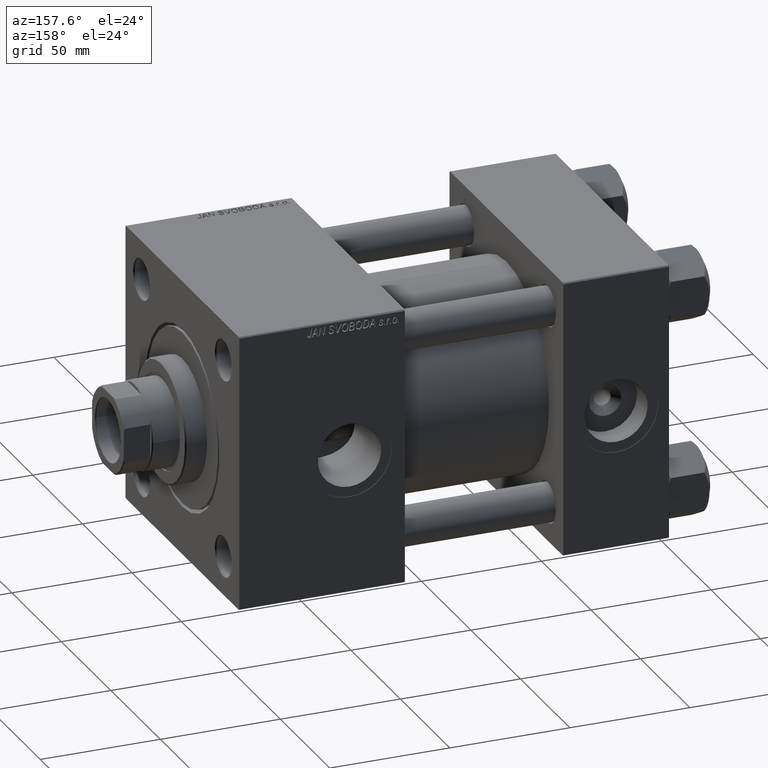
[diagram: clean part render]
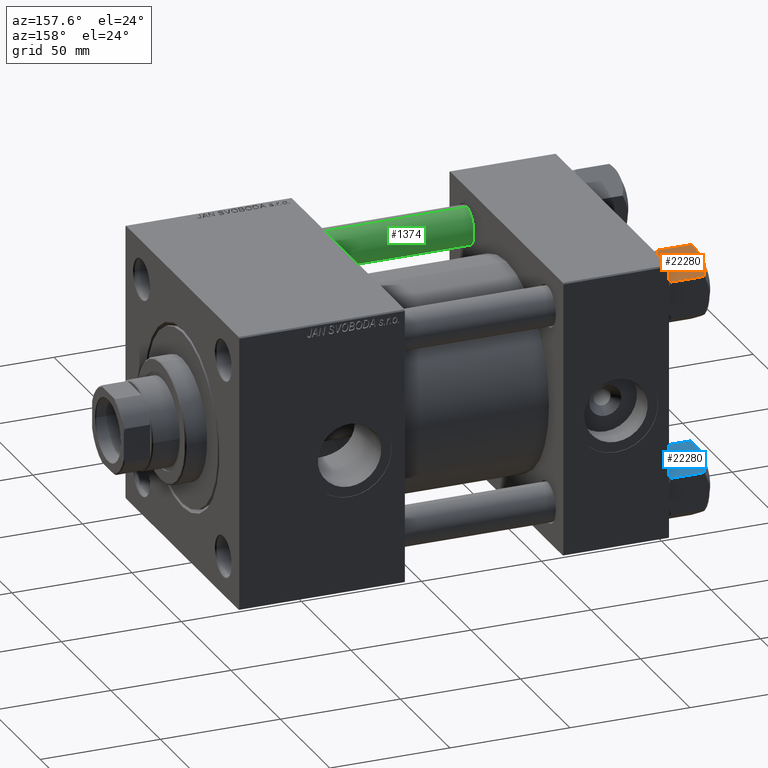
[diagram: same view with three faces highlighted in distinct colors, each labeled with its STEP entity id]
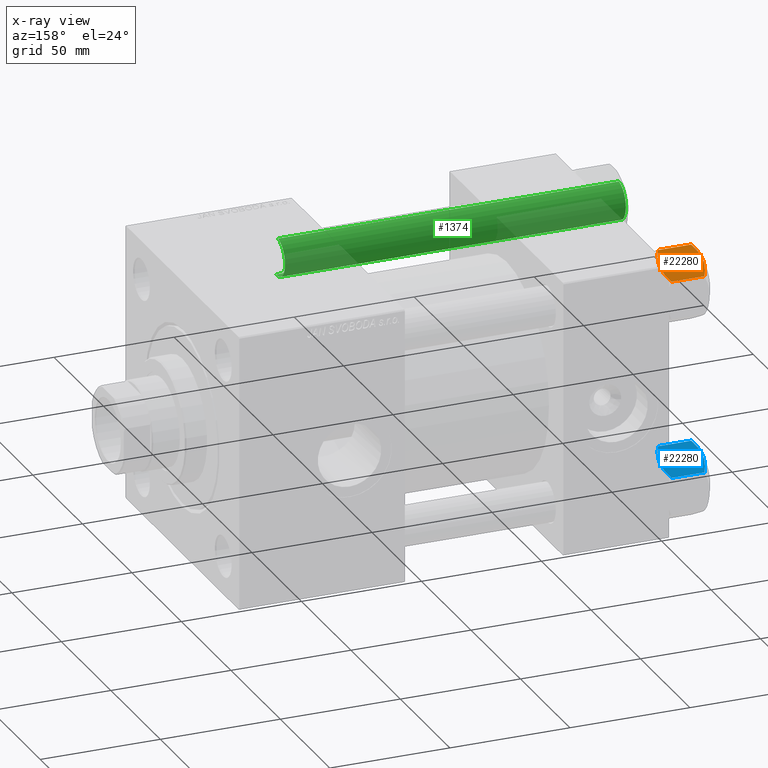
[diagram: x-ray of the same camera — body ghosted, the three highlighted faces saturated]
A machine part, auxiliary view with three faces highlighted in distinct colors.
The next image is the same camera in x-ray (body ghosted, the three faces saturated) — at least one of them is partly hidden behind the body in this view.
Their STEP definitions:

[orange] entity #22280 — the highlighted planar face has unit normal (0, -0.5, -0.866).
#688 = VERTEX_POINT ( 'NONE', #18354 ) ;
#1620 = EDGE_CURVE ( 'NONE', #6485, #32275, #32813, .T. ) ;
#2273 = EDGE_LOOP ( 'NONE', ( #10941, #45659, #13404, #43085, #22933, #24775, #31530, #27171, #33190, #8969 ) ) ;
#3123 = CARTESIAN_POINT ( 'NONE',  ( 11.05297796109638320, 7.910314210667883650, 2.165016213181991667E-15 ) ) ;
#3751 = LINE ( 'NONE', #31441, #23679 ) ;
#4000 = EDGE_CURVE ( 'NONE', #7811, #16766, #50685, .T. ) ;
#4027 = CARTESIAN_POINT ( 'NONE',  ( 9.114548888011798411, 11.26777185211902221, -17.08577173959729478 ) ) ;
#4958 = EDGE_CURVE ( 'NONE', #6485, #17053, #19085, .T. ) ;
#5070 = CARTESIAN_POINT ( 'NONE',  ( 15.52647173767731736, 0.1619957022865213259, -16.00000000000000000 ) ) ;
#5286 = DIRECTION ( 'NONE',  ( -0.000000000000000000, -0.000000000000000000, 1.000000000000000000 ) ) ;
#5321 = VECTOR ( 'NONE', #5286, 1000.000000000000000 ) ;
#6371 = DIRECTION ( 'NONE',  ( -0.000000000000000000, -0.000000000000000000, 1.000000000000000000 ) ) ;
#6485 = VERTEX_POINT ( 'NONE', #29934 ) ;
#6961 = CARTESIAN_POINT ( 'NONE',  ( 8.506059550806622127, 12.32170630002230283, -1.434462921875002683 ) ) ;
#7811 = VERTEX_POINT ( 'NONE', #26422 ) ;
#7899 = CARTESIAN_POINT ( 'NONE',  ( 14.92394044919337937, 1.205610507090647987, -16.56553707812500065 ) ) ;
#7978 = CARTESIAN_POINT ( 'NONE',  ( 10.40215497533437450, 9.037572688741345672, -0.1971866459924547788 ) ) ;
#8155 = CARTESIAN_POINT ( 'NONE',  ( 15.22736220980734778, 0.6800686015852424049, -16.29368822085855584 ) ) ;
#8446 = DIRECTION ( 'NONE',  ( -0.8660254037844387076, -0.4999999999999999445, 0.000000000000000000 ) ) ;
#8646 = CARTESIAN_POINT ( 'NONE',  ( 13.02784502466562877, 4.489744118371592485, -17.80281335400753662 ) ) ;
#8969 = ORIENTED_EDGE ( 'NONE', *, *, #9704, .F. ) ;
#9704 = EDGE_CURVE ( 'NONE', #17053, #39708, #24663, .T. ) ;
#10941 = ORIENTED_EDGE ( 'NONE', *, *, #4958, .F. ) ;
#10943 = CARTESIAN_POINT ( 'NONE',  ( 13.36540581434588049, 3.905071680002324630, -0.3836066851120584764 ) ) ;
#11181 = DIRECTION ( 'NONE',  ( 0.4999999999999999445, -0.8660254037844387076, 0.000000000000000000 ) ) ;
#11718 = CARTESIAN_POINT ( 'NONE',  ( 15.52647173767732980, 0.1619957022865022300, -2.000000000000000000 ) ) ;
#12008 = CARTESIAN_POINT ( 'NONE',  ( 13.99051971937273464, 2.822342635978018599, -17.26828031537187513 ) ) ;
#13260 = VECTOR ( 'NONE', #33966, 999.9999999999998863 ) ;
#13404 = ORIENTED_EDGE ( 'NONE', *, *, #32161, .F. ) ;
#13487 = DIRECTION ( 'NONE',  ( 0.4999999999999998890, -0.8660254037844385966, 0.000000000000000000 ) ) ;
#14540 = CARTESIAN_POINT ( 'NONE',  ( 14.92760668674625002, 1.199260397376449072, -1.411989271640066601 ) ) ;
#14843 = EDGE_CURVE ( 'NONE', #37382, #32045, #37038, .T. ) ;
#15871 = CARTESIAN_POINT ( 'NONE',  ( 12.37702203890362362, 5.617002596445057172, -17.99999999999999645 ) ) ;
#16766 = VERTEX_POINT ( 'NONE', #47010 ) ;
#17053 = VERTEX_POINT ( 'NONE', #44366 ) ;
#17679 = EDGE_CURVE ( 'NONE', #16766, #688, #30218, .T. ) ;
#18354 = CARTESIAN_POINT ( 'NONE',  ( 7.903528262322677023, 13.36532110482643176, -2.000000000000000000 ) ) ;
#19085 = LINE ( 'NONE', #45254, #31832 ) ;
#19672 = CARTESIAN_POINT ( 'NONE',  ( 11.71500000000000519, 6.763658403556469523, 0.000000000000000000 ) ) ;
#21184 = CARTESIAN_POINT ( 'NONE',  ( 15.62000000000000455, -1.379485931020374819E-15, -18.00000000000000000 ) ) ;
#21686 = CARTESIAN_POINT ( 'NONE',  ( 7.810000000000001386, 13.52731680711293905, -18.00000000000000000 ) ) ;
#22280 = ADVANCED_FACE ( 'NONE', ( #43535 ), #48543, .F. ) ;
#22618 = CARTESIAN_POINT ( 'NONE',  ( 8.202637790192646605, 12.84724820552771085, -1.706311779141445717 ) ) ;
#22933 = ORIENTED_EDGE ( 'NONE', *, *, #4000, .F. ) ;
#23512 = CARTESIAN_POINT ( 'NONE',  ( 12.38621571200405924, 5.601078687526928945, -0.05089381635301384876 ) ) ;
#23517 = CARTESIAN_POINT ( 'NONE',  ( 8.502393313253767460, 12.32805640973646710, -16.58801072835993295 ) ) ;
#23520 = CARTESIAN_POINT ( 'NONE',  ( 7.810000000000000497, 13.52731680711293905, -1.999999999999998224 ) ) ;
#23636 = CARTESIAN_POINT ( 'NONE',  ( 9.439480280627263298, 10.70497417113492489, -0.7317196846281137645 ) ) ;
#23679 = VECTOR ( 'NONE', #11181, 999.9999999999998863 ) ;
#24201 = EDGE_CURVE ( 'NONE', #38625, #37382, #3751, .T. ) ;
#24663 = B_SPLINE_CURVE_WITH_KNOTS ( 'NONE', 3,
 ( #39112, #23517, #4027, #40112, #47282, #31949, #48028, #39613 ),
 .UNSPECIFIED., .F., .F.,
 ( 4, 2, 2, 4 ),
 ( 4.472842641813524291E-07, 0.003945636373369291842, 0.005918230917921843588, 0.007890825462474394467 ),
 .UNSPECIFIED. ) ;
#24775 = ORIENTED_EDGE ( 'NONE', *, *, #35451, .F. ) ;
#24825 = CARTESIAN_POINT ( 'NONE',  ( 15.62000000000000455, -1.379485931020374819E-15, -16.00000000000000000 ) ) ;
#26422 = CARTESIAN_POINT ( 'NONE',  ( 15.52647173767732980, 0.1619957022865022300, -2.000000000000000000 ) ) ;
#26708 = CARTESIAN_POINT ( 'NONE',  ( 11.71500000000000519, 6.763658403556469523, 0.000000000000000000 ) ) ;
#27074 = VECTOR ( 'NONE', #32776, 999.9999999999998863 ) ;
#27171 = ORIENTED_EDGE ( 'NONE', *, *, #24201, .F. ) ;
#29934 = CARTESIAN_POINT ( 'NONE',  ( 7.810000000000000497, 13.52731680711293905, -16.00000000000000000 ) ) ;
#30176 = CARTESIAN_POINT ( 'NONE',  ( 13.04337073483128506, 4.462852799541082938, -0.2430846701012968347 ) ) ;
#30218 = B_SPLINE_CURVE_WITH_KNOTS ( 'NONE', 3,
 ( #26708, #3123, #7978, #23636, #47151, #6961, #22618, #30808 ),
 .UNSPECIFIED., .F., .F.,
 ( 4, 2, 2, 4 ),
 ( 0.007890825462474437835, 0.01181022244528555538, 0.01376992093669111156, 0.01572961942809666946 ),
 .UNSPECIFIED. ) ;
#30808 = CARTESIAN_POINT ( 'NONE',  ( 7.903528262322677023, 13.36532110482643176, -2.000000000000000000 ) ) ;
#31243 = CARTESIAN_POINT ( 'NONE',  ( 11.71499999999999453, 6.763658403556462417, -18.00000000000000000 ) ) ;
#31441 = CARTESIAN_POINT ( 'NONE',  ( 7.810000000000001386, 13.52731680711293905, -16.00000000000000000 ) ) ;
#31530 = ORIENTED_EDGE ( 'NONE', *, *, #14843, .F. ) ;
#31832 = VECTOR ( 'NONE', #41412, 999.9999999999998863 ) ;
#31949 = CARTESIAN_POINT ( 'NONE',  ( 11.04378428799595468, 7.926238119586002995, -17.94910618364697541 ) ) ;
#32045 = VERTEX_POINT ( 'NONE', #41751 ) ;
#32161 = EDGE_CURVE ( 'NONE', #688, #32275, #36581, .T. ) ;
#32275 = VERTEX_POINT ( 'NONE', #23520 ) ;
#32465 = CARTESIAN_POINT ( 'NONE',  ( 15.52647173767731736, 0.1619957022865213259, -16.00000000000000000 ) ) ;
#32776 = DIRECTION ( 'NONE',  ( -0.4999999999999999445, 0.8660254037844387076, 0.000000000000000000 ) ) ;
#32813 = LINE ( 'NONE', #40472, #49621 ) ;
#33190 = ORIENTED_EDGE ( 'NONE', *, *, #41321, .F. ) ;
#33966 = DIRECTION ( 'NONE',  ( -0.4999999999999999445, 0.8660254037844387076, 0.000000000000000000 ) ) ;
#35025 = AXIS2_PLACEMENT_3D ( 'NONE', #21686, #8446, #13487 ) ;
#35451 = EDGE_CURVE ( 'NONE', #32045, #7811, #41370, .T. ) ;
#36067 = CARTESIAN_POINT ( 'NONE',  ( 14.30591678195075467, 2.276058899034909544, -17.05261278537717828 ) ) ;
#36581 = LINE ( 'NONE', #44520, #27074 ) ;
#37038 = LINE ( 'NONE', #21184, #5321 ) ;
#37382 = VERTEX_POINT ( 'NONE', #24825 ) ;
#38456 = B_SPLINE_CURVE_WITH_KNOTS ( 'NONE', 3,
 ( #31243, #15871, #8646, #12008, #36067, #7899, #8155, #5070 ),
 .UNSPECIFIED., .F., .F.,
 ( 4, 2, 2, 4 ),
 ( 0.007890825462474394467, 0.01181022244528549814, 0.01376992093669104911, 0.01572961942809660008 ),
 .UNSPECIFIED. ) ;
#38600 = CARTESIAN_POINT ( 'NONE',  ( 12.04818928091285812, 6.186557640478062225, 2.165016213181991667E-15 ) ) ;
#38625 = VERTEX_POINT ( 'NONE', #32465 ) ;
#39112 = CARTESIAN_POINT ( 'NONE',  ( 7.903528262322689457, 13.36532110482641045, -16.00000000000000000 ) ) ;
#39613 = CARTESIAN_POINT ( 'NONE',  ( 11.71499999999999453, 6.763658403556462417, -18.00000000000000000 ) ) ;
#39708 = VERTEX_POINT ( 'NONE', #47123 ) ;
#40112 = CARTESIAN_POINT ( 'NONE',  ( 10.06459418565413166, 9.622245127110598872, -17.61639331488792948 ) ) ;
#40472 = CARTESIAN_POINT ( 'NONE',  ( 7.810000000000001386, 13.52731680711293905, -18.00000000000000000 ) ) ;
#41321 = EDGE_CURVE ( 'NONE', #39708, #38625, #38456, .T. ) ;
#41370 = LINE ( 'NONE', #48783, #13260 ) ;
#41412 = DIRECTION ( 'NONE',  ( 0.4999999999999999445, -0.8660254037844387076, 0.000000000000000000 ) ) ;
#41751 = CARTESIAN_POINT ( 'NONE',  ( 15.62000000000000455, -1.379485931020374819E-15, -1.999999999999998224 ) ) ;
#43085 = ORIENTED_EDGE ( 'NONE', *, *, #17679, .F. ) ;
#43535 = FACE_OUTER_BOUND ( 'NONE', #2273, .T. ) ;
#44366 = CARTESIAN_POINT ( 'NONE',  ( 7.903528262322689457, 13.36532110482641045, -16.00000000000000000 ) ) ;
#44520 = CARTESIAN_POINT ( 'NONE',  ( 7.810000000000001386, 13.52731680711293905, -1.999999999999998224 ) ) ;
#45254 = CARTESIAN_POINT ( 'NONE',  ( 7.810000000000001386, 13.52731680711293905, -16.00000000000000000 ) ) ;
#45659 = ORIENTED_EDGE ( 'NONE', *, *, #1620, .T. ) ;
#47010 = CARTESIAN_POINT ( 'NONE',  ( 11.71500000000000519, 6.763658403556469523, 0.000000000000000000 ) ) ;
#47123 = CARTESIAN_POINT ( 'NONE',  ( 11.71499999999999453, 6.763658403556462417, -18.00000000000000000 ) ) ;
#47151 = CARTESIAN_POINT ( 'NONE',  ( 9.124083218049239719, 11.25125790807803483, -0.9473872146228128344 ) ) ;
#47282 = CARTESIAN_POINT ( 'NONE',  ( 10.38662926516872886, 9.064464007571846338, -17.75691532989869614 ) ) ;
#48028 = CARTESIAN_POINT ( 'NONE',  ( 11.38181071908714692, 7.340759166634869715, -17.99999999999998224 ) ) ;
#48543 = PLANE ( 'NONE',  #35025 ) ;
#48783 = CARTESIAN_POINT ( 'NONE',  ( 7.810000000000001386, 13.52731680711293905, -1.999999999999998224 ) ) ;
#49621 = VECTOR ( 'NONE', #6371, 1000.000000000000000 ) ;
#50353 = CARTESIAN_POINT ( 'NONE',  ( 14.31545111198821552, 2.259544954993893295, -0.9142282604026940040 ) ) ;
#50685 = B_SPLINE_CURVE_WITH_KNOTS ( 'NONE', 3,
 ( #11718, #14540, #50353, #10943, #30176, #23512, #38600, #19672 ),
 .UNSPECIFIED., .F., .F.,
 ( 4, 2, 2, 4 ),
 ( 4.472842641970240738E-07, 0.003945636373369317863, 0.005918230917921878283, 0.007890825462474437835 ),
 .UNSPECIFIED. ) ;

[blue] entity #22280 — the highlighted planar face has unit normal (0, -0.5, -0.866).
#688 = VERTEX_POINT ( 'NONE', #18354 ) ;
#1620 = EDGE_CURVE ( 'NONE', #6485, #32275, #32813, .T. ) ;
#2273 = EDGE_LOOP ( 'NONE', ( #10941, #45659, #13404, #43085, #22933, #24775, #31530, #27171, #33190, #8969 ) ) ;
#3123 = CARTESIAN_POINT ( 'NONE',  ( 11.05297796109638320, 7.910314210667883650, 2.165016213181991667E-15 ) ) ;
#3751 = LINE ( 'NONE', #31441, #23679 ) ;
#4000 = EDGE_CURVE ( 'NONE', #7811, #16766, #50685, .T. ) ;
#4027 = CARTESIAN_POINT ( 'NONE',  ( 9.114548888011798411, 11.26777185211902221, -17.08577173959729478 ) ) ;
#4958 = EDGE_CURVE ( 'NONE', #6485, #17053, #19085, .T. ) ;
#5070 = CARTESIAN_POINT ( 'NONE',  ( 15.52647173767731736, 0.1619957022865213259, -16.00000000000000000 ) ) ;
#5286 = DIRECTION ( 'NONE',  ( -0.000000000000000000, -0.000000000000000000, 1.000000000000000000 ) ) ;
#5321 = VECTOR ( 'NONE', #5286, 1000.000000000000000 ) ;
#6371 = DIRECTION ( 'NONE',  ( -0.000000000000000000, -0.000000000000000000, 1.000000000000000000 ) ) ;
#6485 = VERTEX_POINT ( 'NONE', #29934 ) ;
#6961 = CARTESIAN_POINT ( 'NONE',  ( 8.506059550806622127, 12.32170630002230283, -1.434462921875002683 ) ) ;
#7811 = VERTEX_POINT ( 'NONE', #26422 ) ;
#7899 = CARTESIAN_POINT ( 'NONE',  ( 14.92394044919337937, 1.205610507090647987, -16.56553707812500065 ) ) ;
#7978 = CARTESIAN_POINT ( 'NONE',  ( 10.40215497533437450, 9.037572688741345672, -0.1971866459924547788 ) ) ;
#8155 = CARTESIAN_POINT ( 'NONE',  ( 15.22736220980734778, 0.6800686015852424049, -16.29368822085855584 ) ) ;
#8446 = DIRECTION ( 'NONE',  ( -0.8660254037844387076, -0.4999999999999999445, 0.000000000000000000 ) ) ;
#8646 = CARTESIAN_POINT ( 'NONE',  ( 13.02784502466562877, 4.489744118371592485, -17.80281335400753662 ) ) ;
#8969 = ORIENTED_EDGE ( 'NONE', *, *, #9704, .F. ) ;
#9704 = EDGE_CURVE ( 'NONE', #17053, #39708, #24663, .T. ) ;
#10941 = ORIENTED_EDGE ( 'NONE', *, *, #4958, .F. ) ;
#10943 = CARTESIAN_POINT ( 'NONE',  ( 13.36540581434588049, 3.905071680002324630, -0.3836066851120584764 ) ) ;
#11181 = DIRECTION ( 'NONE',  ( 0.4999999999999999445, -0.8660254037844387076, 0.000000000000000000 ) ) ;
#11718 = CARTESIAN_POINT ( 'NONE',  ( 15.52647173767732980, 0.1619957022865022300, -2.000000000000000000 ) ) ;
#12008 = CARTESIAN_POINT ( 'NONE',  ( 13.99051971937273464, 2.822342635978018599, -17.26828031537187513 ) ) ;
#13260 = VECTOR ( 'NONE', #33966, 999.9999999999998863 ) ;
#13404 = ORIENTED_EDGE ( 'NONE', *, *, #32161, .F. ) ;
#13487 = DIRECTION ( 'NONE',  ( 0.4999999999999998890, -0.8660254037844385966, 0.000000000000000000 ) ) ;
#14540 = CARTESIAN_POINT ( 'NONE',  ( 14.92760668674625002, 1.199260397376449072, -1.411989271640066601 ) ) ;
#14843 = EDGE_CURVE ( 'NONE', #37382, #32045, #37038, .T. ) ;
#15871 = CARTESIAN_POINT ( 'NONE',  ( 12.37702203890362362, 5.617002596445057172, -17.99999999999999645 ) ) ;
#16766 = VERTEX_POINT ( 'NONE', #47010 ) ;
#17053 = VERTEX_POINT ( 'NONE', #44366 ) ;
#17679 = EDGE_CURVE ( 'NONE', #16766, #688, #30218, .T. ) ;
#18354 = CARTESIAN_POINT ( 'NONE',  ( 7.903528262322677023, 13.36532110482643176, -2.000000000000000000 ) ) ;
#19085 = LINE ( 'NONE', #45254, #31832 ) ;
#19672 = CARTESIAN_POINT ( 'NONE',  ( 11.71500000000000519, 6.763658403556469523, 0.000000000000000000 ) ) ;
#21184 = CARTESIAN_POINT ( 'NONE',  ( 15.62000000000000455, -1.379485931020374819E-15, -18.00000000000000000 ) ) ;
#21686 = CARTESIAN_POINT ( 'NONE',  ( 7.810000000000001386, 13.52731680711293905, -18.00000000000000000 ) ) ;
#22280 = ADVANCED_FACE ( 'NONE', ( #43535 ), #48543, .F. ) ;
#22618 = CARTESIAN_POINT ( 'NONE',  ( 8.202637790192646605, 12.84724820552771085, -1.706311779141445717 ) ) ;
#22933 = ORIENTED_EDGE ( 'NONE', *, *, #4000, .F. ) ;
#23512 = CARTESIAN_POINT ( 'NONE',  ( 12.38621571200405924, 5.601078687526928945, -0.05089381635301384876 ) ) ;
#23517 = CARTESIAN_POINT ( 'NONE',  ( 8.502393313253767460, 12.32805640973646710, -16.58801072835993295 ) ) ;
#23520 = CARTESIAN_POINT ( 'NONE',  ( 7.810000000000000497, 13.52731680711293905, -1.999999999999998224 ) ) ;
#23636 = CARTESIAN_POINT ( 'NONE',  ( 9.439480280627263298, 10.70497417113492489, -0.7317196846281137645 ) ) ;
#23679 = VECTOR ( 'NONE', #11181, 999.9999999999998863 ) ;
#24201 = EDGE_CURVE ( 'NONE', #38625, #37382, #3751, .T. ) ;
#24663 = B_SPLINE_CURVE_WITH_KNOTS ( 'NONE', 3,
 ( #39112, #23517, #4027, #40112, #47282, #31949, #48028, #39613 ),
 .UNSPECIFIED., .F., .F.,
 ( 4, 2, 2, 4 ),
 ( 4.472842641813524291E-07, 0.003945636373369291842, 0.005918230917921843588, 0.007890825462474394467 ),
 .UNSPECIFIED. ) ;
#24775 = ORIENTED_EDGE ( 'NONE', *, *, #35451, .F. ) ;
#24825 = CARTESIAN_POINT ( 'NONE',  ( 15.62000000000000455, -1.379485931020374819E-15, -16.00000000000000000 ) ) ;
#26422 = CARTESIAN_POINT ( 'NONE',  ( 15.52647173767732980, 0.1619957022865022300, -2.000000000000000000 ) ) ;
#26708 = CARTESIAN_POINT ( 'NONE',  ( 11.71500000000000519, 6.763658403556469523, 0.000000000000000000 ) ) ;
#27074 = VECTOR ( 'NONE', #32776, 999.9999999999998863 ) ;
#27171 = ORIENTED_EDGE ( 'NONE', *, *, #24201, .F. ) ;
#29934 = CARTESIAN_POINT ( 'NONE',  ( 7.810000000000000497, 13.52731680711293905, -16.00000000000000000 ) ) ;
#30176 = CARTESIAN_POINT ( 'NONE',  ( 13.04337073483128506, 4.462852799541082938, -0.2430846701012968347 ) ) ;
#30218 = B_SPLINE_CURVE_WITH_KNOTS ( 'NONE', 3,
 ( #26708, #3123, #7978, #23636, #47151, #6961, #22618, #30808 ),
 .UNSPECIFIED., .F., .F.,
 ( 4, 2, 2, 4 ),
 ( 0.007890825462474437835, 0.01181022244528555538, 0.01376992093669111156, 0.01572961942809666946 ),
 .UNSPECIFIED. ) ;
#30808 = CARTESIAN_POINT ( 'NONE',  ( 7.903528262322677023, 13.36532110482643176, -2.000000000000000000 ) ) ;
#31243 = CARTESIAN_POINT ( 'NONE',  ( 11.71499999999999453, 6.763658403556462417, -18.00000000000000000 ) ) ;
#31441 = CARTESIAN_POINT ( 'NONE',  ( 7.810000000000001386, 13.52731680711293905, -16.00000000000000000 ) ) ;
#31530 = ORIENTED_EDGE ( 'NONE', *, *, #14843, .F. ) ;
#31832 = VECTOR ( 'NONE', #41412, 999.9999999999998863 ) ;
#31949 = CARTESIAN_POINT ( 'NONE',  ( 11.04378428799595468, 7.926238119586002995, -17.94910618364697541 ) ) ;
#32045 = VERTEX_POINT ( 'NONE', #41751 ) ;
#32161 = EDGE_CURVE ( 'NONE', #688, #32275, #36581, .T. ) ;
#32275 = VERTEX_POINT ( 'NONE', #23520 ) ;
#32465 = CARTESIAN_POINT ( 'NONE',  ( 15.52647173767731736, 0.1619957022865213259, -16.00000000000000000 ) ) ;
#32776 = DIRECTION ( 'NONE',  ( -0.4999999999999999445, 0.8660254037844387076, 0.000000000000000000 ) ) ;
#32813 = LINE ( 'NONE', #40472, #49621 ) ;
#33190 = ORIENTED_EDGE ( 'NONE', *, *, #41321, .F. ) ;
#33966 = DIRECTION ( 'NONE',  ( -0.4999999999999999445, 0.8660254037844387076, 0.000000000000000000 ) ) ;
#35025 = AXIS2_PLACEMENT_3D ( 'NONE', #21686, #8446, #13487 ) ;
#35451 = EDGE_CURVE ( 'NONE', #32045, #7811, #41370, .T. ) ;
#36067 = CARTESIAN_POINT ( 'NONE',  ( 14.30591678195075467, 2.276058899034909544, -17.05261278537717828 ) ) ;
#36581 = LINE ( 'NONE', #44520, #27074 ) ;
#37038 = LINE ( 'NONE', #21184, #5321 ) ;
#37382 = VERTEX_POINT ( 'NONE', #24825 ) ;
#38456 = B_SPLINE_CURVE_WITH_KNOTS ( 'NONE', 3,
 ( #31243, #15871, #8646, #12008, #36067, #7899, #8155, #5070 ),
 .UNSPECIFIED., .F., .F.,
 ( 4, 2, 2, 4 ),
 ( 0.007890825462474394467, 0.01181022244528549814, 0.01376992093669104911, 0.01572961942809660008 ),
 .UNSPECIFIED. ) ;
#38600 = CARTESIAN_POINT ( 'NONE',  ( 12.04818928091285812, 6.186557640478062225, 2.165016213181991667E-15 ) ) ;
#38625 = VERTEX_POINT ( 'NONE', #32465 ) ;
#39112 = CARTESIAN_POINT ( 'NONE',  ( 7.903528262322689457, 13.36532110482641045, -16.00000000000000000 ) ) ;
#39613 = CARTESIAN_POINT ( 'NONE',  ( 11.71499999999999453, 6.763658403556462417, -18.00000000000000000 ) ) ;
#39708 = VERTEX_POINT ( 'NONE', #47123 ) ;
#40112 = CARTESIAN_POINT ( 'NONE',  ( 10.06459418565413166, 9.622245127110598872, -17.61639331488792948 ) ) ;
#40472 = CARTESIAN_POINT ( 'NONE',  ( 7.810000000000001386, 13.52731680711293905, -18.00000000000000000 ) ) ;
#41321 = EDGE_CURVE ( 'NONE', #39708, #38625, #38456, .T. ) ;
#41370 = LINE ( 'NONE', #48783, #13260 ) ;
#41412 = DIRECTION ( 'NONE',  ( 0.4999999999999999445, -0.8660254037844387076, 0.000000000000000000 ) ) ;
#41751 = CARTESIAN_POINT ( 'NONE',  ( 15.62000000000000455, -1.379485931020374819E-15, -1.999999999999998224 ) ) ;
#43085 = ORIENTED_EDGE ( 'NONE', *, *, #17679, .F. ) ;
#43535 = FACE_OUTER_BOUND ( 'NONE', #2273, .T. ) ;
#44366 = CARTESIAN_POINT ( 'NONE',  ( 7.903528262322689457, 13.36532110482641045, -16.00000000000000000 ) ) ;
#44520 = CARTESIAN_POINT ( 'NONE',  ( 7.810000000000001386, 13.52731680711293905, -1.999999999999998224 ) ) ;
#45254 = CARTESIAN_POINT ( 'NONE',  ( 7.810000000000001386, 13.52731680711293905, -16.00000000000000000 ) ) ;
#45659 = ORIENTED_EDGE ( 'NONE', *, *, #1620, .T. ) ;
#47010 = CARTESIAN_POINT ( 'NONE',  ( 11.71500000000000519, 6.763658403556469523, 0.000000000000000000 ) ) ;
#47123 = CARTESIAN_POINT ( 'NONE',  ( 11.71499999999999453, 6.763658403556462417, -18.00000000000000000 ) ) ;
#47151 = CARTESIAN_POINT ( 'NONE',  ( 9.124083218049239719, 11.25125790807803483, -0.9473872146228128344 ) ) ;
#47282 = CARTESIAN_POINT ( 'NONE',  ( 10.38662926516872886, 9.064464007571846338, -17.75691532989869614 ) ) ;
#48028 = CARTESIAN_POINT ( 'NONE',  ( 11.38181071908714692, 7.340759166634869715, -17.99999999999998224 ) ) ;
#48543 = PLANE ( 'NONE',  #35025 ) ;
#48783 = CARTESIAN_POINT ( 'NONE',  ( 7.810000000000001386, 13.52731680711293905, -1.999999999999998224 ) ) ;
#49621 = VECTOR ( 'NONE', #6371, 1000.000000000000000 ) ;
#50353 = CARTESIAN_POINT ( 'NONE',  ( 14.31545111198821552, 2.259544954993893295, -0.9142282604026940040 ) ) ;
#50685 = B_SPLINE_CURVE_WITH_KNOTS ( 'NONE', 3,
 ( #11718, #14540, #50353, #10943, #30176, #23512, #38600, #19672 ),
 .UNSPECIFIED., .F., .F.,
 ( 4, 2, 2, 4 ),
 ( 4.472842641970240738E-07, 0.003945636373369317863, 0.005918230917921878283, 0.007890825462474437835 ),
 .UNSPECIFIED. ) ;

[green] entity #1374 — the highlighted cylindrical surface (edge-blend (fillet) strip) has radius 8 mm, axis along (1, 0, -0).
#1374 = ADVANCED_FACE ( 'NONE', ( #43479 ), #4798, .T. ) ;
#3435 = VERTEX_POINT ( 'NONE', #28033 ) ;
#4798 = CYLINDRICAL_SURFACE ( 'NONE', #23622, 8.000000000000000000 ) ;
#5722 = CARTESIAN_POINT ( 'NONE',  ( 0.000000000000000000, 0.000000000000000000, 142.4999999999999716 ) ) ;
#5942 = DIRECTION ( 'NONE',  ( -0.000000000000000000, -0.000000000000000000, -1.000000000000000000 ) ) ;
#6107 = LINE ( 'NONE', #14318, #50529 ) ;
#7012 = VERTEX_POINT ( 'NONE', #39935 ) ;
#8632 = CARTESIAN_POINT ( 'NONE',  ( 0.000000000000000000, 0.000000000000000000, 143.0000000000000000 ) ) ;
#9856 = CARTESIAN_POINT ( 'NONE',  ( -8.000000000000000000, 0.000000000000000000, 0.4999999999999726885 ) ) ;
#10357 = AXIS2_PLACEMENT_3D ( 'NONE', #13475, #10378, #25267 ) ;
#10378 = DIRECTION ( 'NONE',  ( -0.000000000000000000, -0.000000000000000000, 1.000000000000000000 ) ) ;
#12233 = EDGE_LOOP ( 'NONE', ( #15526, #23546, #20618, #14940 ) ) ;
#12305 = EDGE_CURVE ( 'NONE', #3435, #24472, #18266, .T. ) ;
#12831 = CIRCLE ( 'NONE', #10357, 8.000000000000000000 ) ;
#13475 = CARTESIAN_POINT ( 'NONE',  ( 0.000000000000000000, 0.000000000000000000, 0.4999999999999726885 ) ) ;
#14260 = VECTOR ( 'NONE', #5942, 1000.000000000000000 ) ;
#14318 = CARTESIAN_POINT ( 'NONE',  ( 8.000000000000000000, 9.797174393178825657E-16, 143.0000000000000000 ) ) ;
#14940 = ORIENTED_EDGE ( 'NONE', *, *, #19481, .T. ) ;
#15430 = AXIS2_PLACEMENT_3D ( 'NONE', #5722, #21621, #34151 ) ;
#15526 = ORIENTED_EDGE ( 'NONE', *, *, #25919, .F. ) ;
#18266 = LINE ( 'NONE', #41037, #14260 ) ;
#19481 = EDGE_CURVE ( 'NONE', #24472, #7012, #12831, .T. ) ;
#20618 = ORIENTED_EDGE ( 'NONE', *, *, #12305, .T. ) ;
#20698 = DIRECTION ( 'NONE',  ( -1.000000000000000000, 0.000000000000000000, 0.000000000000000000 ) ) ;
#21621 = DIRECTION ( 'NONE',  ( 0.000000000000000000, 0.000000000000000000, -1.000000000000000000 ) ) ;
#21971 = CIRCLE ( 'NONE', #15430, 8.000000000000000000 ) ;
#23546 = ORIENTED_EDGE ( 'NONE', *, *, #38994, .T. ) ;
#23622 = AXIS2_PLACEMENT_3D ( 'NONE', #8632, #36539, #20698 ) ;
#24472 = VERTEX_POINT ( 'NONE', #9856 ) ;
#25267 = DIRECTION ( 'NONE',  ( 1.000000000000000000, 0.000000000000000000, 0.000000000000000000 ) ) ;
#25919 = EDGE_CURVE ( 'NONE', #47162, #7012, #6107, .T. ) ;
#28033 = CARTESIAN_POINT ( 'NONE',  ( -8.000000000000000000, 0.000000000000000000, 142.4999999999999716 ) ) ;
#29653 = CARTESIAN_POINT ( 'NONE',  ( 8.000000000000000000, 9.797174393178825657E-16, 142.4999999999999716 ) ) ;
#34151 = DIRECTION ( 'NONE',  ( 1.000000000000000000, 0.000000000000000000, 0.000000000000000000 ) ) ;
#36539 = DIRECTION ( 'NONE',  ( -0.000000000000000000, -0.000000000000000000, -1.000000000000000000 ) ) ;
#38994 = EDGE_CURVE ( 'NONE', #47162, #3435, #21971, .T. ) ;
#39935 = CARTESIAN_POINT ( 'NONE',  ( 8.000000000000000000, 9.797174393178825657E-16, 0.4999999999999726885 ) ) ;
#40692 = DIRECTION ( 'NONE',  ( -0.000000000000000000, -0.000000000000000000, -1.000000000000000000 ) ) ;
#41037 = CARTESIAN_POINT ( 'NONE',  ( -8.000000000000000000, 0.000000000000000000, 143.0000000000000000 ) ) ;
#43479 = FACE_OUTER_BOUND ( 'NONE', #12233, .T. ) ;
#47162 = VERTEX_POINT ( 'NONE', #29653 ) ;
#50529 = VECTOR ( 'NONE', #40692, 1000.000000000000000 ) ;